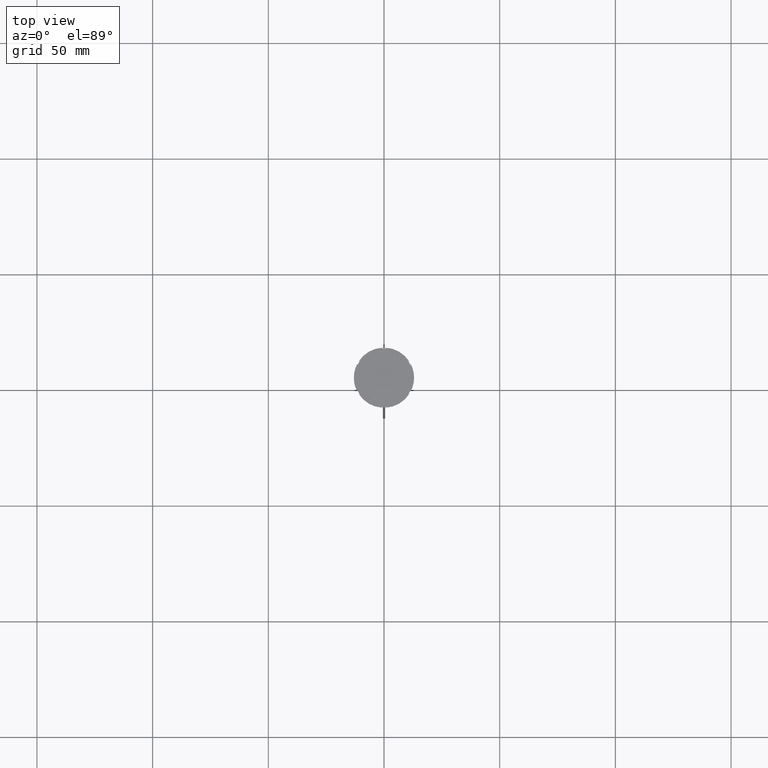
[diagram: clean part render]
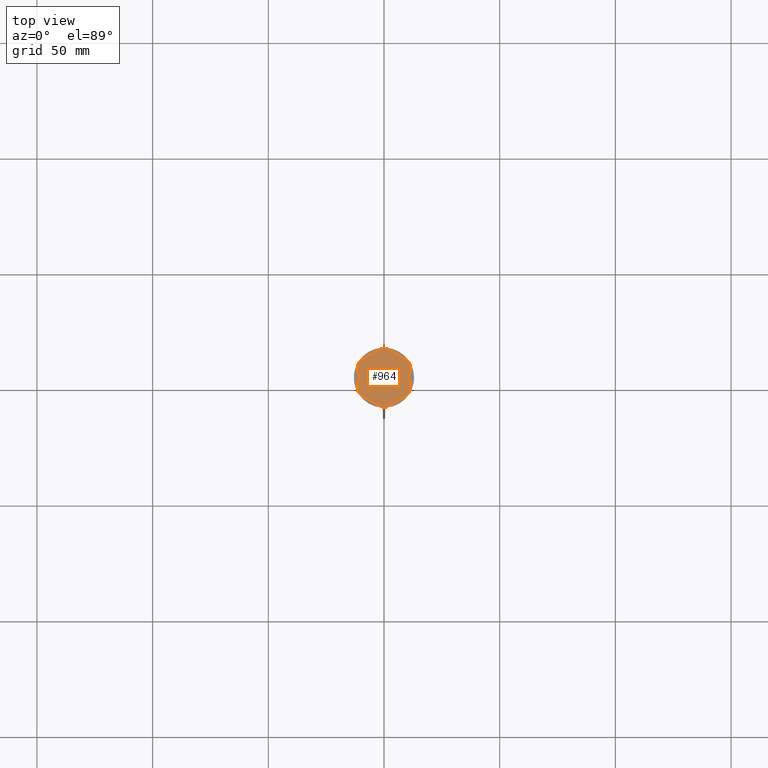
[diagram: same view with one face highlighted and labeled with its STEP entity id]
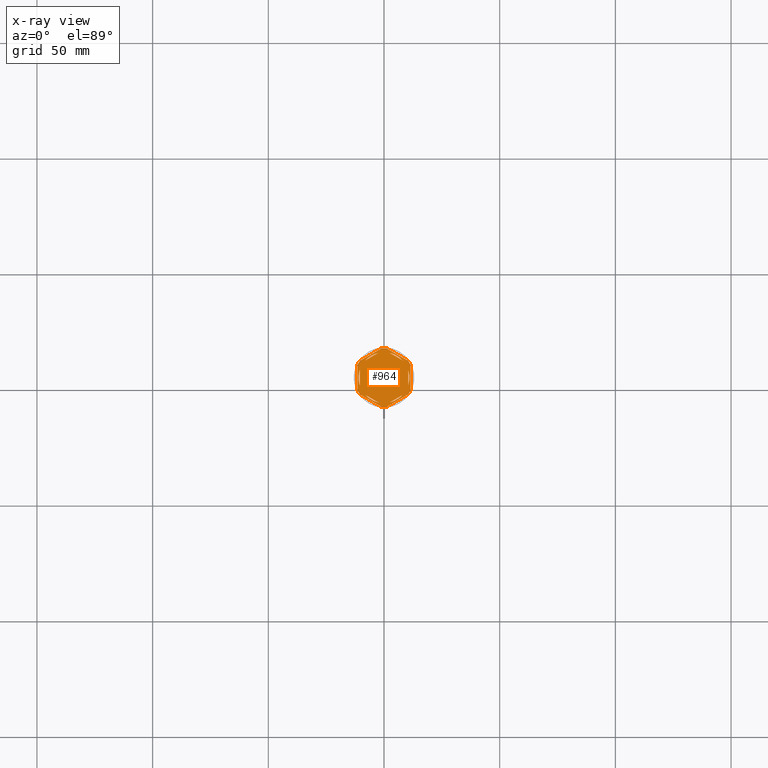
[diagram: x-ray of the same camera — body ghosted, the highlighted face saturated]
A machine part, top view. The second image highlights one B-rep face of the part: STEP entity #964.
The next image is the same camera in x-ray: the body ghosted, the highlighted face saturated — about 0% of this face is hidden behind the body in this view.
In plain terms, the highlighted planar face has unit normal (0, 0, 1).
Its self-contained STEP definition (entity closure, byte-faithful):
#3 = ORIENTED_EDGE ( 'NONE', *, *, #1945, .F. ) ;
#10 = LINE ( 'NONE', #227, #1841 ) ;
#13 = CARTESIAN_POINT ( 'NONE',  ( 0.000000000000000000, 0.000000000000000000, -1.000000000000000000 ) ) ;
#14 = VERTEX_POINT ( 'NONE', #1012 ) ;
#43 = VECTOR ( 'NONE', #1586, 1000.000000000000000 ) ;
#51 = EDGE_CURVE ( 'NONE', #1869, #2576, #1790, .T. ) ;
#79 = CIRCLE ( 'NONE', #972, 11.00000000000000000 ) ;
#93 = EDGE_CURVE ( 'NONE', #1972, #1137, #1384, .T. ) ;
#116 = LINE ( 'NONE', #2275, #1346 ) ;
#131 = EDGE_CURVE ( 'NONE', #2697, #1351, #1793, .T. ) ;
#136 = ORIENTED_EDGE ( 'NONE', *, *, #93, .F. ) ;
#151 = CARTESIAN_POINT ( 'NONE',  ( 0.000000000000000000, 0.000000000000000000, -1.000000000000000000 ) ) ;
#154 = CARTESIAN_POINT ( 'NONE',  ( 0.000000000000000000, 0.000000000000000000, -1.000000000000000000 ) ) ;
#177 = DIRECTION ( 'NONE',  ( 1.000000000000000000, 1.243449787580175325E-14, 0.000000000000000000 ) ) ;
#178 = CARTESIAN_POINT ( 'NONE',  ( 11.49999999999999822, -6.639528095680694797, -1.000000000000000000 ) ) ;
#196 = DIRECTION ( 'NONE',  ( 0.8660254037844385966, 0.5000000000000001110, -0.000000000000000000 ) ) ;
#205 = CARTESIAN_POINT ( 'NONE',  ( 2.410545827099865868, -10.73262637081210791, -1.000000000000000888 ) ) ;
#210 = VECTOR ( 'NONE', #1565, 1000.000000000000114 ) ;
#217 = DIRECTION ( 'NONE',  ( 0.8660254037844387076, -0.4999999999999997780, 0.000000000000000000 ) ) ;
#224 = AXIS2_PLACEMENT_3D ( 'NONE', #1580, #1389, #1826 ) ;
#227 = CARTESIAN_POINT ( 'NONE',  ( 5.612359739892467248E-18, -13.27905619136138959, -1.000000000000000000 ) ) ;
#236 = VERTEX_POINT ( 'NONE', #304 ) ;
#238 = DIRECTION ( 'NONE',  ( 1.000000000000000000, 0.000000000000000000, 0.000000000000000000 ) ) ;
#253 = DIRECTION ( 'NONE',  ( -0.000000000000000000, -0.000000000000000000, -1.000000000000000000 ) ) ;
#261 = VECTOR ( 'NONE', #2087, 1000.000000000000000 ) ;
#271 = CIRCLE ( 'NONE', #224, 11.00000000000000000 ) ;
#272 = DIRECTION ( 'NONE',  ( 1.000000000000000000, -1.776356839400250465E-14, 0.000000000000000000 ) ) ;
#293 = CARTESIAN_POINT ( 'NONE',  ( 0.000000000000000000, 0.000000000000000000, -1.000000000000000000 ) ) ;
#294 = DIRECTION ( 'NONE',  ( -0.8660254037844384856, 0.5000000000000002220, 0.000000000000000000 ) ) ;
#304 = CARTESIAN_POINT ( 'NONE',  ( -10.41690475583121334, -7.264853426459548125, -1.000000000000000000 ) ) ;
#315 = CARTESIAN_POINT ( 'NONE',  ( -11.00000000000000000, 0.000000000000000000, -1.000000000000000000 ) ) ;
#319 = EDGE_CURVE ( 'NONE', #2708, #434, #475, .T. ) ;
#325 = EDGE_CURVE ( 'NONE', #236, #1351, #2749, .T. ) ;
#343 = CARTESIAN_POINT ( 'NONE',  ( -11.50000000000000000, -5.388877434122992582, -1.000000000000000000 ) ) ;
#381 = CARTESIAN_POINT ( 'NONE',  ( -11.50000000000000000, -6.639528095680696573, -1.000000000000000000 ) ) ;
#382 = CARTESIAN_POINT ( 'NONE',  ( -1.083095244168779780, -12.65373086058253982, -1.000000000000000000 ) ) ;
#392 = CIRCLE ( 'NONE', #2781, 12.69999999999999929 ) ;
#414 = EDGE_LOOP ( 'NONE', ( #1881, #811 ) ) ;
#423 = ORIENTED_EDGE ( 'NONE', *, *, #131, .F. ) ;
#429 = DIRECTION ( 'NONE',  ( -0.8660254037844388186, 0.4999999999999997224, 0.000000000000000000 ) ) ;
#434 = VERTEX_POINT ( 'NONE', #1447 ) ;
#440 = CIRCLE ( 'NONE', #520, 12.69999999999999929 ) ;
#475 = CIRCLE ( 'NONE', #834, 11.00000000000000000 ) ;
#491 = ORIENTED_EDGE ( 'NONE', *, *, #2250, .F. ) ;
#520 = AXIS2_PLACEMENT_3D ( 'NONE', #2214, #1813, #272 ) ;
#541 = EDGE_LOOP ( 'NONE', ( #2546, #2442 ) ) ;
#546 = CARTESIAN_POINT ( 'NONE',  ( 10.41690475583121156, 7.264853426459550789, -1.000000000000000000 ) ) ;
#553 = AXIS2_PLACEMENT_3D ( 'NONE', #293, #2015, #238 ) ;
#555 = LINE ( 'NONE', #1013, #1842 ) ;
#574 = FACE_OUTER_BOUND ( 'NONE', #2092, .T. ) ;
#576 = EDGE_CURVE ( 'NONE', #1137, #1972, #1774, .T. ) ;
#583 = VERTEX_POINT ( 'NONE', #2410 ) ;
#602 = VERTEX_POINT ( 'NONE', #2639 ) ;
#603 = FACE_BOUND ( 'NONE', #830, .T. ) ;
#606 = VECTOR ( 'NONE', #1560, 1000.000000000000000 ) ;
#610 = AXIS2_PLACEMENT_3D ( 'NONE', #154, #1644, #1058 ) ;
#616 = AXIS2_PLACEMENT_3D ( 'NONE', #2484, #1363, #2040 ) ;
#633 = VERTEX_POINT ( 'NONE', #315 ) ;
#645 = VERTEX_POINT ( 'NONE', #1802 ) ;
#660 = AXIS2_PLACEMENT_3D ( 'NONE', #2625, #253, #1979 ) ;
#677 = CARTESIAN_POINT ( 'NONE',  ( 10.49999999999999289, -6.062177826491073063, -1.000000000000000888 ) ) ;
#680 = ORIENTED_EDGE ( 'NONE', *, *, #1054, .T. ) ;
#682 = CARTESIAN_POINT ( 'NONE',  ( 10.49999999999999467, 3.278719262151012170, -1.000000000000000888 ) ) ;
#685 = EDGE_CURVE ( 'NONE', #14, #1603, #717, .T. ) ;
#709 = CARTESIAN_POINT ( 'NONE',  ( -11.50000000000000000, 6.639528095680691244, -1.000000000000000000 ) ) ;
#713 = CARTESIAN_POINT ( 'NONE',  ( 11.49999999999999822, -5.388877434122996135, -1.000000000000000000 ) ) ;
#717 = LINE ( 'NONE', #788, #261 ) ;
#741 = ORIENTED_EDGE ( 'NONE', *, *, #1488, .F. ) ;
#763 = DIRECTION ( 'NONE',  ( 1.306360520641008153E-16, 1.000000000000000000, 0.000000000000000000 ) ) ;
#764 = CARTESIAN_POINT ( 'NONE',  ( 1.083095244168774673, -12.65373086058253982, -1.000000000000000000 ) ) ;
#786 = VECTOR ( 'NONE', #763, 1000.000000000000000 ) ;
#788 = CARTESIAN_POINT ( 'NONE',  ( -10.49999999999999822, 6.062177826491068622, -1.000000000000000888 ) ) ;
#791 = VECTOR ( 'NONE', #294, 1000.000000000000000 ) ;
#797 = EDGE_CURVE ( 'NONE', #236, #2197, #392, .T. ) ;
#811 = ORIENTED_EDGE ( 'NONE', *, *, #1276, .F. ) ;
#830 = EDGE_LOOP ( 'NONE', ( #1773, #2297, #491 ) ) ;
#834 = AXIS2_PLACEMENT_3D ( 'NONE', #151, #2314, #1901 ) ;
#855 = DIRECTION ( 'NONE',  ( 0.8660254037844385966, 0.4999999999999999445, 0.000000000000000000 ) ) ;
#858 = ORIENTED_EDGE ( 'NONE', *, *, #797, .F. ) ;
#874 = ORIENTED_EDGE ( 'NONE', *, *, #325, .T. ) ;
#909 = CARTESIAN_POINT ( 'NONE',  ( 10.41690475583121867, -7.264853426459537467, -1.000000000000000000 ) ) ;
#941 = ORIENTED_EDGE ( 'NONE', *, *, #2468, .F. ) ;
#947 = VERTEX_POINT ( 'NONE', #1227 ) ;
#964 = ADVANCED_FACE ( 'NONE', ( #998, #1499, #2084, #2753, #603, #1905, #574 ), #1450, .T. ) ;
#968 = EDGE_CURVE ( 'NONE', #1719, #602, #555, .T. ) ;
#972 = AXIS2_PLACEMENT_3D ( 'NONE', #1350, #1262, #1692 ) ;
#991 = CARTESIAN_POINT ( 'NONE',  ( 2.410545827099861871, 10.73262637081210791, -1.000000000000000888 ) ) ;
#995 = ORIENTED_EDGE ( 'NONE', *, *, #2255, .T. ) ;
#998 = FACE_BOUND ( 'NONE', #541, .T. ) ;
#1012 = CARTESIAN_POINT ( 'NONE',  ( -10.49999999999999822, -3.278719262151000624, -1.000000000000000888 ) ) ;
#1013 = CARTESIAN_POINT ( 'NONE',  ( 10.49999999999999467, 6.062177826491072175, -1.000000000000000888 ) ) ;
#1022 = VECTOR ( 'NONE', #196, 1000.000000000000000 ) ;
#1023 = LINE ( 'NONE', #178, #786 ) ;
#1050 = CARTESIAN_POINT ( 'NONE',  ( -1.734723475976807094E-15, 12.12435565298214080, -1.000000000000000888 ) ) ;
#1054 = EDGE_CURVE ( 'NONE', #2593, #947, #2372, .T. ) ;
#1056 = VERTEX_POINT ( 'NONE', #909 ) ;
#1058 = DIRECTION ( 'NONE',  ( 1.000000000000000000, 0.000000000000000000, -0.000000000000000000 ) ) ;
#1059 = DIRECTION ( 'NONE',  ( 1.000000000000000000, 0.000000000000000000, 0.000000000000000000 ) ) ;
#1071 = CARTESIAN_POINT ( 'NONE',  ( 8.089454172900135021, -7.453907108661109504, -1.000000000000000888 ) ) ;
#1104 = ORIENTED_EDGE ( 'NONE', *, *, #2008, .F. ) ;
#1121 = EDGE_CURVE ( 'NONE', #2024, #1056, #1159, .T. ) ;
#1123 = CARTESIAN_POINT ( 'NONE',  ( 0.000000000000000000, 13.27905619136138959, -1.000000000000000000 ) ) ;
#1130 = DIRECTION ( 'NONE',  ( 0.000000000000000000, 0.000000000000000000, 1.000000000000000000 ) ) ;
#1137 = VERTEX_POINT ( 'NONE', #682 ) ;
#1149 = ORIENTED_EDGE ( 'NONE', *, *, #1784, .T. ) ;
#1159 = CIRCLE ( 'NONE', #660, 12.69999999999999929 ) ;
#1169 = CARTESIAN_POINT ( 'NONE',  ( -10.49999999999999822, 3.278719262151000624, -1.000000000000000888 ) ) ;
#1227 = CARTESIAN_POINT ( 'NONE',  ( 1.083095244168781557, 12.65373086058254160, -1.000000000000000000 ) ) ;
#1262 = DIRECTION ( 'NONE',  ( 0.000000000000000000, 0.000000000000000000, 1.000000000000000000 ) ) ;
#1271 = EDGE_CURVE ( 'NONE', #2695, #2197, #1633, .T. ) ;
#1276 = EDGE_CURVE ( 'NONE', #645, #583, #2237, .T. ) ;
#1310 = CARTESIAN_POINT ( 'NONE',  ( 0.000000000000000000, 0.000000000000000000, -1.000000000000000000 ) ) ;
#1335 = ORIENTED_EDGE ( 'NONE', *, *, #1121, .F. ) ;
#1346 = VECTOR ( 'NONE', #2523, 999.9999999999998863 ) ;
#1350 = CARTESIAN_POINT ( 'NONE',  ( 0.000000000000000000, 0.000000000000000000, -1.000000000000000000 ) ) ;
#1351 = VERTEX_POINT ( 'NONE', #382 ) ;
#1363 = DIRECTION ( 'NONE',  ( -0.000000000000000000, -0.000000000000000000, -1.000000000000000000 ) ) ;
#1384 = CIRCLE ( 'NONE', #2466, 11.00000000000000000 ) ;
#1389 = DIRECTION ( 'NONE',  ( 0.000000000000000000, 0.000000000000000000, 1.000000000000000000 ) ) ;
#1447 = CARTESIAN_POINT ( 'NONE',  ( -8.089454172900135021, 7.453907108661106840, -1.000000000000000888 ) ) ;
#1450 = PLANE ( 'NONE',  #610 ) ;
#1478 = DIRECTION ( 'NONE',  ( 0.8660254037844387076, -0.4999999999999999445, 0.000000000000000000 ) ) ;
#1480 = CARTESIAN_POINT ( 'NONE',  ( 11.49999999999999822, 5.388877434122992582, -1.000000000000000000 ) ) ;
#1488 = EDGE_CURVE ( 'NONE', #2312, #2718, #1570, .T. ) ;
#1490 = CARTESIAN_POINT ( 'NONE',  ( -11.50000000000000000, 5.388877434122992582, -1.000000000000000000 ) ) ;
#1499 = FACE_BOUND ( 'NONE', #1650, .T. ) ;
#1501 = DIRECTION ( 'NONE',  ( 1.000000000000000000, 7.105427357601001859E-15, 0.000000000000000000 ) ) ;
#1520 = CARTESIAN_POINT ( 'NONE',  ( 0.000000000000000000, 0.000000000000000000, -1.000000000000000000 ) ) ;
#1530 = DIRECTION ( 'NONE',  ( -0.000000000000000000, -0.000000000000000000, -1.000000000000000000 ) ) ;
#1546 = CARTESIAN_POINT ( 'NONE',  ( 10.49999999999999467, -3.278719262151014835, -1.000000000000000888 ) ) ;
#1560 = DIRECTION ( 'NONE',  ( -1.430775808321104180E-16, -1.000000000000000000, 0.000000000000000000 ) ) ;
#1565 = DIRECTION ( 'NONE',  ( -0.8660254037844385966, -0.5000000000000001110, 0.000000000000000000 ) ) ;
#1570 = CIRCLE ( 'NONE', #2060, 11.00000000000000000 ) ;
#1575 = AXIS2_PLACEMENT_3D ( 'NONE', #1678, #1130, #1059 ) ;
#1580 = CARTESIAN_POINT ( 'NONE',  ( 0.000000000000000000, 0.000000000000000000, -1.000000000000000000 ) ) ;
#1586 = DIRECTION ( 'NONE',  ( 0.000000000000000000, -1.000000000000000000, 0.000000000000000000 ) ) ;
#1603 = VERTEX_POINT ( 'NONE', #1169 ) ;
#1633 = LINE ( 'NONE', #709, #43 ) ;
#1644 = DIRECTION ( 'NONE',  ( 0.000000000000000000, 0.000000000000000000, 1.000000000000000000 ) ) ;
#1650 = EDGE_LOOP ( 'NONE', ( #136, #2733 ) ) ;
#1661 = CIRCLE ( 'NONE', #1575, 11.00000000000000000 ) ;
#1678 = CARTESIAN_POINT ( 'NONE',  ( 0.000000000000000000, 0.000000000000000000, -1.000000000000000000 ) ) ;
#1692 = DIRECTION ( 'NONE',  ( 1.000000000000000000, 0.000000000000000000, 0.000000000000000000 ) ) ;
#1719 = VERTEX_POINT ( 'NONE', #991 ) ;
#1773 = ORIENTED_EDGE ( 'NONE', *, *, #2303, .F. ) ;
#1774 = LINE ( 'NONE', #677, #606 ) ;
#1784 = EDGE_CURVE ( 'NONE', #2024, #2245, #1023, .T. ) ;
#1790 = LINE ( 'NONE', #1123, #210 ) ;
#1793 = CIRCLE ( 'NONE', #553, 12.69999999999999929 ) ;
#1802 = CARTESIAN_POINT ( 'NONE',  ( -2.410545827099876082, -10.73262637081210435, -1.000000000000000888 ) ) ;
#1813 = DIRECTION ( 'NONE',  ( -0.000000000000000000, -0.000000000000000000, -1.000000000000000000 ) ) ;
#1826 = DIRECTION ( 'NONE',  ( 1.000000000000000000, 0.000000000000000000, 0.000000000000000000 ) ) ;
#1841 = VECTOR ( 'NONE', #855, 1000.000000000000114 ) ;
#1842 = VECTOR ( 'NONE', #1478, 999.9999999999998863 ) ;
#1869 = VERTEX_POINT ( 'NONE', #2599 ) ;
#1881 = ORIENTED_EDGE ( 'NONE', *, *, #2285, .F. ) ;
#1901 = DIRECTION ( 'NONE',  ( 1.000000000000000000, 0.000000000000000000, 0.000000000000000000 ) ) ;
#1905 = FACE_BOUND ( 'NONE', #2081, .T. ) ;
#1938 = AXIS2_PLACEMENT_3D ( 'NONE', #2549, #2346, #2743 ) ;
#1945 = EDGE_CURVE ( 'NONE', #1869, #947, #2467, .T. ) ;
#1972 = VERTEX_POINT ( 'NONE', #1546 ) ;
#1979 = DIRECTION ( 'NONE',  ( 1.000000000000000000, 0.000000000000000000, 0.000000000000000000 ) ) ;
#2005 = CARTESIAN_POINT ( 'NONE',  ( 11.50000000000000000, 6.639528095680698350, -1.000000000000000000 ) ) ;
#2008 = EDGE_CURVE ( 'NONE', #2593, #2245, #440, .T. ) ;
#2015 = DIRECTION ( 'NONE',  ( -0.000000000000000000, -0.000000000000000000, -1.000000000000000000 ) ) ;
#2024 = VERTEX_POINT ( 'NONE', #713 ) ;
#2040 = DIRECTION ( 'NONE',  ( 1.000000000000000000, 0.000000000000000000, 0.000000000000000000 ) ) ;
#2060 = AXIS2_PLACEMENT_3D ( 'NONE', #1520, #2579, #2621 ) ;
#2081 = EDGE_LOOP ( 'NONE', ( #2400, #2280 ) ) ;
#2084 = FACE_BOUND ( 'NONE', #2674, .T. ) ;
#2087 = DIRECTION ( 'NONE',  ( 0.000000000000000000, 1.000000000000000000, 0.000000000000000000 ) ) ;
#2092 = EDGE_LOOP ( 'NONE', ( #1149, #1104, #680, #3, #2183, #941, #2193, #858, #874, #423, #995, #1335 ) ) ;
#2130 = EDGE_CURVE ( 'NONE', #2718, #2312, #116, .T. ) ;
#2172 = DIRECTION ( 'NONE',  ( -0.000000000000000000, -0.000000000000000000, -1.000000000000000000 ) ) ;
#2183 = ORIENTED_EDGE ( 'NONE', *, *, #51, .T. ) ;
#2193 = ORIENTED_EDGE ( 'NONE', *, *, #1271, .T. ) ;
#2197 = VERTEX_POINT ( 'NONE', #343 ) ;
#2198 = CARTESIAN_POINT ( 'NONE',  ( 0.000000000000000000, 0.000000000000000000, -1.000000000000000000 ) ) ;
#2214 = CARTESIAN_POINT ( 'NONE',  ( 0.000000000000000000, 0.000000000000000000, -1.000000000000000000 ) ) ;
#2237 = LINE ( 'NONE', #2490, #791 ) ;
#2245 = VERTEX_POINT ( 'NONE', #1480 ) ;
#2250 = EDGE_CURVE ( 'NONE', #633, #14, #79, .T. ) ;
#2255 = EDGE_CURVE ( 'NONE', #2697, #1056, #10, .T. ) ;
#2275 = CARTESIAN_POINT ( 'NONE',  ( -2.602085213965210642E-15, -12.12435565298214080, -1.000000000000000888 ) ) ;
#2280 = ORIENTED_EDGE ( 'NONE', *, *, #2703, .F. ) ;
#2285 = EDGE_CURVE ( 'NONE', #583, #645, #1661, .T. ) ;
#2297 = ORIENTED_EDGE ( 'NONE', *, *, #685, .F. ) ;
#2303 = EDGE_CURVE ( 'NONE', #1603, #633, #2613, .T. ) ;
#2312 = VERTEX_POINT ( 'NONE', #205 ) ;
#2314 = DIRECTION ( 'NONE',  ( 0.000000000000000000, 0.000000000000000000, 1.000000000000000000 ) ) ;
#2322 = ORIENTED_EDGE ( 'NONE', *, *, #2130, .F. ) ;
#2346 = DIRECTION ( 'NONE',  ( 0.000000000000000000, 0.000000000000000000, 1.000000000000000000 ) ) ;
#2372 = LINE ( 'NONE', #2005, #2470 ) ;
#2400 = ORIENTED_EDGE ( 'NONE', *, *, #319, .F. ) ;
#2410 = CARTESIAN_POINT ( 'NONE',  ( -8.089454172900133244, -7.453907108661111280, -1.000000000000000888 ) ) ;
#2442 = ORIENTED_EDGE ( 'NONE', *, *, #968, .F. ) ;
#2466 = AXIS2_PLACEMENT_3D ( 'NONE', #2198, #2645, #2609 ) ;
#2467 = CIRCLE ( 'NONE', #2689, 12.69999999999999929 ) ;
#2468 = EDGE_CURVE ( 'NONE', #2695, #2576, #2617, .T. ) ;
#2470 = VECTOR ( 'NONE', #429, 1000.000000000000000 ) ;
#2482 = EDGE_CURVE ( 'NONE', #602, #1719, #271, .T. ) ;
#2484 = CARTESIAN_POINT ( 'NONE',  ( 0.000000000000000000, 0.000000000000000000, -1.000000000000000000 ) ) ;
#2490 = CARTESIAN_POINT ( 'NONE',  ( -10.49999999999999822, -6.062177826491068622, -1.000000000000000888 ) ) ;
#2523 = DIRECTION ( 'NONE',  ( -0.8660254037844387076, -0.4999999999999999445, 0.000000000000000000 ) ) ;
#2527 = CARTESIAN_POINT ( 'NONE',  ( -10.41690475583121689, 7.264853426459546348, -1.000000000000000000 ) ) ;
#2546 = ORIENTED_EDGE ( 'NONE', *, *, #2482, .F. ) ;
#2549 = CARTESIAN_POINT ( 'NONE',  ( 0.000000000000000000, 0.000000000000000000, -1.000000000000000000 ) ) ;
#2576 = VERTEX_POINT ( 'NONE', #2527 ) ;
#2579 = DIRECTION ( 'NONE',  ( 0.000000000000000000, 0.000000000000000000, 1.000000000000000000 ) ) ;
#2588 = LINE ( 'NONE', #1050, #1022 ) ;
#2593 = VERTEX_POINT ( 'NONE', #546 ) ;
#2599 = CARTESIAN_POINT ( 'NONE',  ( -1.083095244168783333, 12.65373086058254160, -1.000000000000000000 ) ) ;
#2609 = DIRECTION ( 'NONE',  ( 1.000000000000000000, 0.000000000000000000, 0.000000000000000000 ) ) ;
#2613 = CIRCLE ( 'NONE', #1938, 11.00000000000000000 ) ;
#2617 = CIRCLE ( 'NONE', #616, 12.69999999999999929 ) ;
#2621 = DIRECTION ( 'NONE',  ( 1.000000000000000000, 0.000000000000000000, 0.000000000000000000 ) ) ;
#2625 = CARTESIAN_POINT ( 'NONE',  ( 0.000000000000000000, 0.000000000000000000, -1.000000000000000000 ) ) ;
#2639 = CARTESIAN_POINT ( 'NONE',  ( 8.089454172900138573, 7.453907108661105063, -1.000000000000000888 ) ) ;
#2645 = DIRECTION ( 'NONE',  ( 0.000000000000000000, 0.000000000000000000, 1.000000000000000000 ) ) ;
#2674 = EDGE_LOOP ( 'NONE', ( #741, #2322 ) ) ;
#2689 = AXIS2_PLACEMENT_3D ( 'NONE', #13, #1530, #177 ) ;
#2695 = VERTEX_POINT ( 'NONE', #1490 ) ;
#2697 = VERTEX_POINT ( 'NONE', #764 ) ;
#2703 = EDGE_CURVE ( 'NONE', #434, #2708, #2588, .T. ) ;
#2708 = VERTEX_POINT ( 'NONE', #2776 ) ;
#2718 = VERTEX_POINT ( 'NONE', #1071 ) ;
#2733 = ORIENTED_EDGE ( 'NONE', *, *, #576, .F. ) ;
#2743 = DIRECTION ( 'NONE',  ( 1.000000000000000000, 0.000000000000000000, 0.000000000000000000 ) ) ;
#2749 = LINE ( 'NONE', #381, #2774 ) ;
#2753 = FACE_BOUND ( 'NONE', #414, .T. ) ;
#2774 = VECTOR ( 'NONE', #217, 1000.000000000000227 ) ;
#2776 = CARTESIAN_POINT ( 'NONE',  ( -2.410545827099867200, 10.73262637081210613, -1.000000000000000888 ) ) ;
#2781 = AXIS2_PLACEMENT_3D ( 'NONE', #1310, #2172, #1501 ) ;